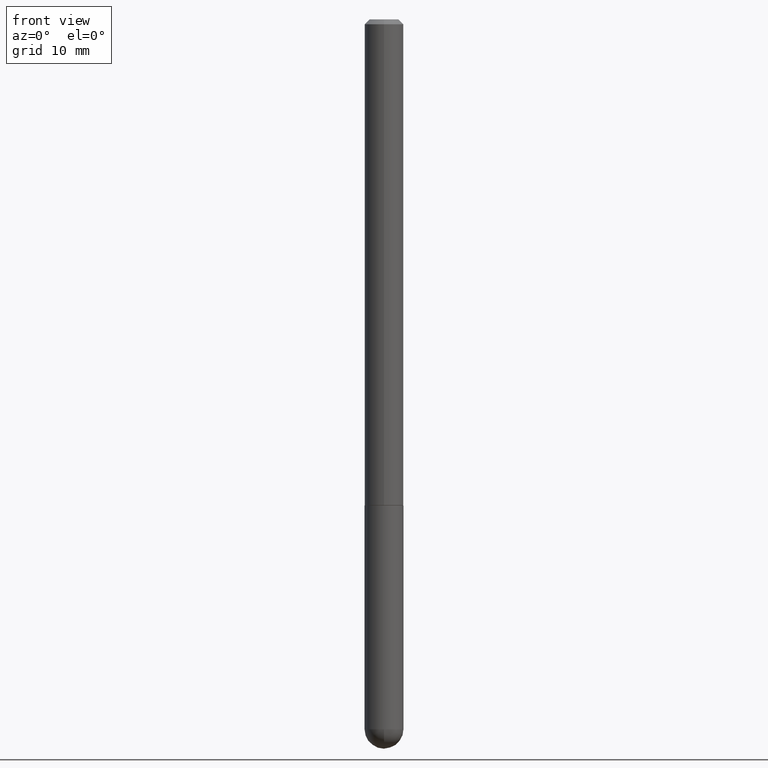
[diagram: clean part render]
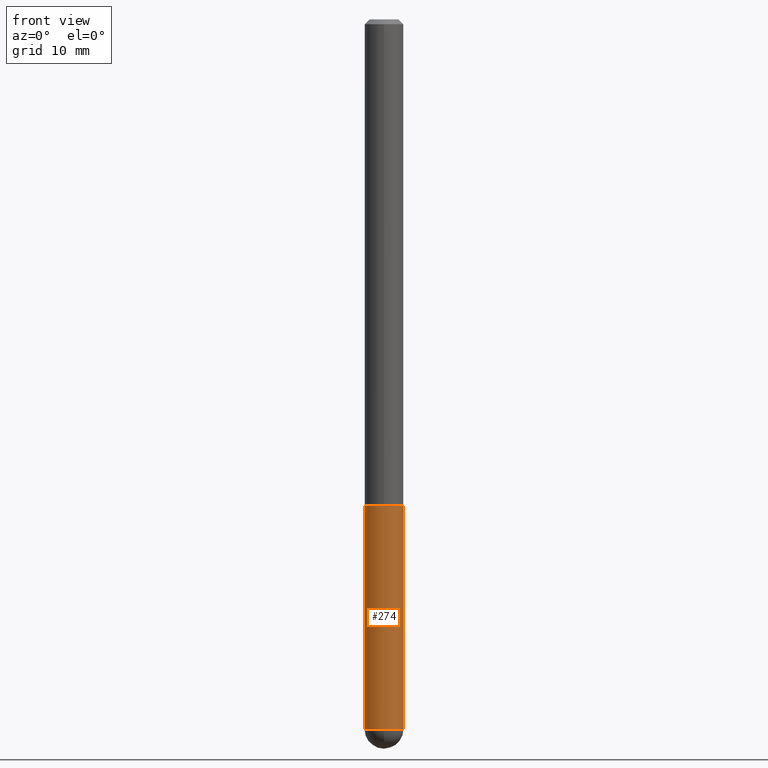
[diagram: same view with one face highlighted and labeled with its STEP entity id]
A machine part, front view. The second image highlights one B-rep face of the part: STEP entity #274.
In plain terms, the highlighted cylindrical surface (edge-blend (fillet) strip) has radius 2.0002 mm, axis along (-0, 0, 1).
Its self-contained STEP definition (entity closure, byte-faithful):
#9 = LINE ( 'NONE', #191, #344 ) ;
#30 = ORIENTED_EDGE ( 'NONE', *, *, #226, .T. ) ;
#32 = DIRECTION ( 'NONE',  ( 1.000000000000000000, -6.982962677686267499E-15, 4.876176775795935793E-29 ) ) ;
#39 = DIRECTION ( 'NONE',  ( -2.445468806185136877E-29, 3.491481338843145188E-15, 1.000000000000000000 ) ) ;
#40 = VECTOR ( 'NONE', #39, 39.37007874015748143 ) ;
#61 = AXIS2_PLACEMENT_3D ( 'NONE', #91, #244, #247 ) ;
#62 = CARTESIAN_POINT ( 'NONE',  ( 7.028399622416392066E-29, -1.003469194190214264E-14, -2.874049999999999994 ) ) ;
#66 = CARTESIAN_POINT ( 'NONE',  ( -5.595524044110105652E-16, -0.07875000000001032563, -2.874049999999999550 ) ) ;
#72 = LINE ( 'NONE', #390, #40 ) ;
#78 = FACE_OUTER_BOUND ( 'NONE', #170, .T. ) ;
#86 = DIRECTION ( 'NONE',  ( -2.445468806185136597E-29, 3.491481338843145583E-15, 1.000000000000000000 ) ) ;
#91 = CARTESIAN_POINT ( 'NONE',  ( 7.028399622416392066E-29, -1.003469194190214264E-14, -2.874049999999999994 ) ) ;
#93 = DIRECTION ( 'NONE',  ( -2.445468806185136597E-29, 3.491481338843145583E-15, 1.000000000000000000 ) ) ;
#118 = VERTEX_POINT ( 'NONE', #381 ) ;
#134 = DIRECTION ( 'NONE',  ( -2.445468806185136877E-29, 3.491481338843145188E-15, 1.000000000000000000 ) ) ;
#156 = CYLINDRICAL_SURFACE ( 'NONE', #222, 0.07874999999999997280 ) ;
#168 = ORIENTED_EDGE ( 'NONE', *, *, #363, .F. ) ;
#170 = EDGE_LOOP ( 'NONE', ( #168, #30, #288, #291, #300 ) ) ;
#171 = CIRCLE ( 'NONE', #61, 0.07874999999999997280 ) ;
#191 = CARTESIAN_POINT ( 'NONE',  ( -0.07874999999999997280, 5.595524044110787031E-16, -3.873661383575737091E-30 ) ) ;
#216 = AXIS2_PLACEMENT_3D ( 'NONE', #62, #86, #267 ) ;
#219 = CARTESIAN_POINT ( 'NONE',  ( 0.07875000000000000056, -7.422889326380523475E-15, -1.968499999999999694 ) ) ;
#222 = AXIS2_PLACEMENT_3D ( 'NONE', #322, #93, #32 ) ;
#225 = VERTEX_POINT ( 'NONE', #342 ) ;
#226 = EDGE_CURVE ( 'NONE', #262, #310, #364, .T. ) ;
#233 = CARTESIAN_POINT ( 'NONE',  ( -0.07874999999999997280, -7.894284074296357585E-15, -2.874049999999999994 ) ) ;
#244 = DIRECTION ( 'NONE',  ( -2.445468806185136597E-29, 3.491481338843145583E-15, 1.000000000000000000 ) ) ;
#246 = DIRECTION ( 'NONE',  ( 1.000000000000000000, -6.982962677686261977E-15, 0.000000000000000000 ) ) ;
#247 = DIRECTION ( 'NONE',  ( 1.000000000000000000, -6.982962677686264344E-15, 0.000000000000000000 ) ) ;
#262 = VERTEX_POINT ( 'NONE', #233 ) ;
#267 = DIRECTION ( 'NONE',  ( 1.000000000000000000, -6.982962677686264344E-15, 0.000000000000000000 ) ) ;
#274 = ADVANCED_FACE ( 'NONE', ( #78 ), #156, .T. ) ;
#275 = CARTESIAN_POINT ( 'NONE',  ( 4.813905344975440714E-29, -6.872981015512730918E-15, -1.968499999999999694 ) ) ;
#284 = EDGE_CURVE ( 'NONE', #118, #410, #371, .T. ) ;
#288 = ORIENTED_EDGE ( 'NONE', *, *, #316, .T. ) ;
#291 = ORIENTED_EDGE ( 'NONE', *, *, #311, .T. ) ;
#300 = ORIENTED_EDGE ( 'NONE', *, *, #284, .F. ) ;
#310 = VERTEX_POINT ( 'NONE', #66 ) ;
#311 = EDGE_CURVE ( 'NONE', #225, #410, #72, .T. ) ;
#316 = EDGE_CURVE ( 'NONE', #310, #225, #171, .T. ) ;
#322 = CARTESIAN_POINT ( 'NONE',  ( 0.000000000000000000, 0.000000000000000000, 0.000000000000000000 ) ) ;
#342 = CARTESIAN_POINT ( 'NONE',  ( 0.07874999999999997280, -9.003744789575230521E-15, -2.874049999999999994 ) ) ;
#344 = VECTOR ( 'NONE', #134, 39.37007874015748143 ) ;
#353 = DIRECTION ( 'NONE',  ( -2.445468806185136597E-29, 3.491481338843145583E-15, 1.000000000000000000 ) ) ;
#356 = AXIS2_PLACEMENT_3D ( 'NONE', #275, #353, #246 ) ;
#363 = EDGE_CURVE ( 'NONE', #262, #118, #9, .T. ) ;
#364 = CIRCLE ( 'NONE', #216, 0.07874999999999997280 ) ;
#371 = CIRCLE ( 'NONE', #356, 0.07875000000000000056 ) ;
#381 = CARTESIAN_POINT ( 'NONE',  ( -0.07875000000000000056, -7.894284074296357585E-15, -1.968499999999999694 ) ) ;
#390 = CARTESIAN_POINT ( 'NONE',  ( 0.07874999999999997280, -5.499083108677933457E-16, 3.839989210939298316E-30 ) ) ;
#410 = VERTEX_POINT ( 'NONE', #219 ) ;